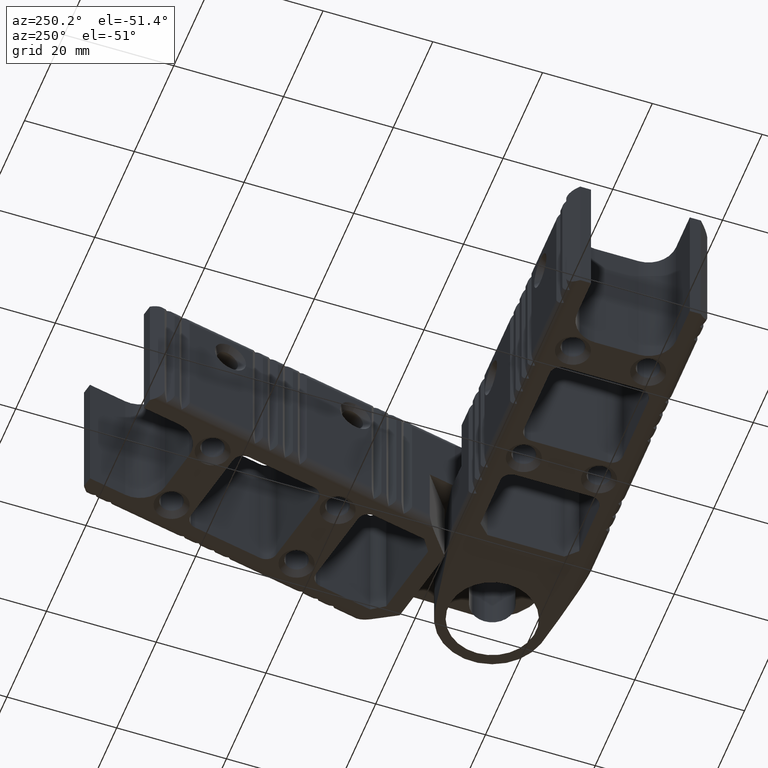
[diagram: clean part render]
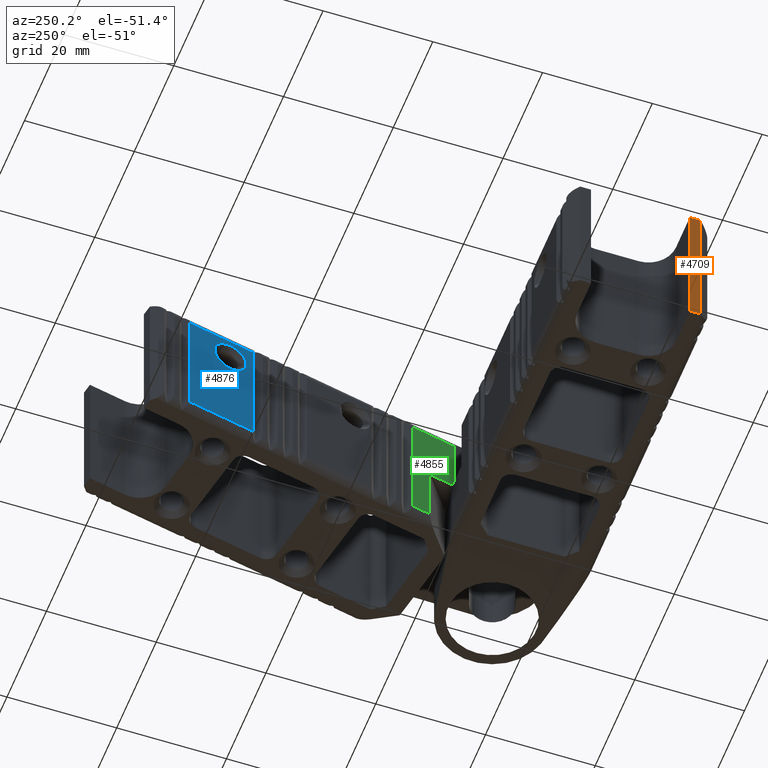
[diagram: same view with three faces highlighted in distinct colors, each labeled with its STEP entity id]
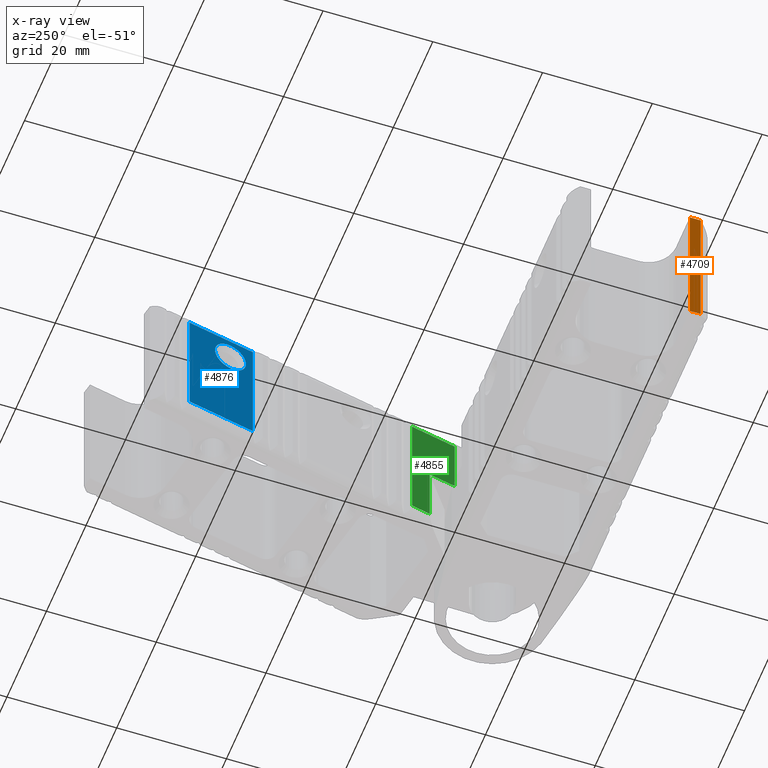
[diagram: x-ray of the same camera — body ghosted, the three highlighted faces saturated]
A machine part, auxiliary view with three faces highlighted in distinct colors.
The next image is the same camera in x-ray (body ghosted, the three faces saturated) — at least one of them is partly hidden behind the body in this view.
Their STEP definitions:

[orange] entity #4709 — the highlighted planar face has unit normal (1, -0, 0).
#33=PLANE('',#5089);
#513=FACE_OUTER_BOUND('',#762,.T.);
#762=EDGE_LOOP('',(#3434,#3435,#3436,#3437,#3438,#3439));
#1021=LINE('',#7532,#1410);
#1045=LINE('',#7602,#1434);
#1062=LINE('',#7650,#1451);
#1064=LINE('',#7656,#1453);
#1410=VECTOR('',#5786,1000.);
#1434=VECTOR('',#5838,1000.);
#1451=VECTOR('',#5873,1000.);
#1453=VECTOR('',#5879,1000.);
#1838=CIRCLE('',#5090,2.);
#1839=CIRCLE('',#5091,2.);
#1994=VERTEX_POINT('',#7529);
#1995=VERTEX_POINT('',#7531);
#2026=VERTEX_POINT('',#7600);
#2027=VERTEX_POINT('',#7601);
#2050=VERTEX_POINT('',#7653);
#2051=VERTEX_POINT('',#7655);
#2527=EDGE_CURVE('',#1995,#1994,#1021,.T.);
#2561=EDGE_CURVE('',#2026,#2027,#1045,.T.);
#2586=EDGE_CURVE('',#2026,#1995,#1062,.T.);
#2588=EDGE_CURVE('',#1994,#2050,#1838,.T.);
#2589=EDGE_CURVE('',#2051,#2050,#1064,.T.);
#2590=EDGE_CURVE('',#2051,#2027,#1839,.T.);
#3434=ORIENTED_EDGE('',*,*,#2527,.T.);
#3435=ORIENTED_EDGE('',*,*,#2588,.T.);
#3436=ORIENTED_EDGE('',*,*,#2589,.F.);
#3437=ORIENTED_EDGE('',*,*,#2590,.T.);
#3438=ORIENTED_EDGE('',*,*,#2561,.F.);
#3439=ORIENTED_EDGE('',*,*,#2586,.T.);
#4709=ADVANCED_FACE('',(#513),#33,.F.);
#5089=AXIS2_PLACEMENT_3D('',#7652,#5875,#5876);
#5090=AXIS2_PLACEMENT_3D('',#7654,#5877,#5878);
#5091=AXIS2_PLACEMENT_3D('',#7657,#5880,#5881);
#5786=DIRECTION('',(5.72031295835295E-15,-1.,-4.02105788955747E-15));
#5838=DIRECTION('',(5.72031295835295E-15,-1.,-4.02105788955747E-15));
#5873=DIRECTION('',(8.9706945392882E-15,-4.02105788955743E-15,-1.));
#5875=DIRECTION('center_axis',(1.,-5.72031295835292E-15,8.97069453928822E-15));
#5876=DIRECTION('ref_axis',(8.97069453928819E-15,-4.02105788955744E-15,
-1.));
#5877=DIRECTION('center_axis',(-1.,5.72031295835299E-15,8.97069453928819E-15));
#5878=DIRECTION('ref_axis',(-8.97069453928821E-15,-3.90312782094771E-15,
-1.));
#5879=DIRECTION('',(8.9706945392882E-15,-4.02105788955743E-15,-1.));
#5880=DIRECTION('center_axis',(-1.,5.72031295835299E-15,8.97069453928819E-15));
#5881=DIRECTION('ref_axis',(-8.97069453928831E-15,-2.168404344971E-14,-1.));
#7529=CARTESIAN_POINT('',(-49.0143302673358,5.84589766430632,0.));
#7531=CARTESIAN_POINT('',(-49.0143302673358,7.69589766430645,0.));
#7532=CARTESIAN_POINT('',(-49.0143302673358,7.69589766430645,0.));
#7600=CARTESIAN_POINT('',(-49.014330267336,7.69589766430623,25.6999999999996));
#7601=CARTESIAN_POINT('',(-49.014330267336,5.8458976643061,25.6999999999996));
#7602=CARTESIAN_POINT('',(-49.014330267336,7.69589766430623,25.6999999999996));
#7650=CARTESIAN_POINT('',(-49.014330267336,7.69589766430623,25.6999999999996));
#7652=CARTESIAN_POINT('Origin',(-49.014330267336,7.69589766430623,25.6999999999996));
#7653=CARTESIAN_POINT('',(-49.0143302673358,5.69589766430667,0.00563293248223573));
#7654=CARTESIAN_POINT('Origin',(-49.0143302673358,5.84589766430632,1.99999999999978));
#7655=CARTESIAN_POINT('',(-49.014330267336,5.69589766430645,25.6943670675183));
#7656=CARTESIAN_POINT('',(-49.014330267336,5.69589766430645,25.6999999999996));
#7657=CARTESIAN_POINT('Origin',(-49.014330267336,5.8458976643061,23.6999999999998));

[blue] entity #4876 — the highlighted planar face has unit normal (0.9813, 0.1925, 0).
#162=PLANE('',#5497);
#221=FACE_BOUND('',#952,.T.);
#680=FACE_OUTER_BOUND('',#951,.T.);
#951=EDGE_LOOP('',(#4388,#4389,#4390,#4391));
#952=EDGE_LOOP('',(#4392,#4393));
#1342=LINE('',#8896,#1731);
#1343=LINE('',#8900,#1732);
#1344=LINE('',#8902,#1733);
#1345=LINE('',#8903,#1734);
#1731=VECTOR('',#6967,1000.);
#1732=VECTOR('',#6972,1000.);
#1733=VECTOR('',#6973,1000.);
#1734=VECTOR('',#6974,1000.);
#1873=CIRCLE('',#5297,3.09999999999998);
#1874=CIRCLE('',#5298,3.09999999999998);
#2198=VERTEX_POINT('',#8135);
#2199=VERTEX_POINT('',#8137);
#2399=VERTEX_POINT('',#8893);
#2400=VERTEX_POINT('',#8895);
#2401=VERTEX_POINT('',#8899);
#2402=VERTEX_POINT('',#8901);
#2829=EDGE_CURVE('',#2199,#2198,#1873,.T.);
#2830=EDGE_CURVE('',#2198,#2199,#1874,.T.);
#3110=EDGE_CURVE('',#2400,#2399,#1342,.T.);
#3112=EDGE_CURVE('',#2399,#2401,#1343,.T.);
#3113=EDGE_CURVE('',#2402,#2401,#1344,.T.);
#3114=EDGE_CURVE('',#2402,#2400,#1345,.T.);
#4388=ORIENTED_EDGE('',*,*,#3110,.T.);
#4389=ORIENTED_EDGE('',*,*,#3112,.T.);
#4390=ORIENTED_EDGE('',*,*,#3113,.F.);
#4391=ORIENTED_EDGE('',*,*,#3114,.T.);
#4392=ORIENTED_EDGE('',*,*,#2829,.T.);
#4393=ORIENTED_EDGE('',*,*,#2830,.T.);
#4876=ADVANCED_FACE('',(#680,#221),#162,.F.);
#5297=AXIS2_PLACEMENT_3D('',#8138,#6419,#6420);
#5298=AXIS2_PLACEMENT_3D('',#8139,#6421,#6422);
#5497=AXIS2_PLACEMENT_3D('',#8898,#6970,#6971);
#6419=DIRECTION('center_axis',(-3.33066907387546E-16,-1.,-6.52223638510904E-17));
#6420=DIRECTION('ref_axis',(2.17234110203879E-32,6.52223638510904E-17,-1.));
#6421=DIRECTION('center_axis',(-3.33066907387546E-16,-1.,-6.52223638510904E-17));
#6422=DIRECTION('ref_axis',(2.17234110203879E-32,6.52223638510904E-17,-1.));
#6967=DIRECTION('',(5.05620425241281E-17,-6.52223638510904E-17,-1.));
#6970=DIRECTION('center_axis',(-3.33066907387546E-16,-1.,6.52223638510903E-17));
#6971=DIRECTION('ref_axis',(5.0562042524128E-17,-6.52223638510904E-17,-1.));
#6972=DIRECTION('',(-1.,-3.33066907387546E-16,5.05620425241281E-17));
#6973=DIRECTION('',(5.05620425241281E-17,-6.52223638510904E-17,-1.));
#6974=DIRECTION('',(1.,3.33066907387546E-16,-5.05620425241281E-17));
#8135=CARTESIAN_POINT('',(-34.0143302673367,29.5458976643072,3.10000000000017));
#8137=CARTESIAN_POINT('',(-34.0143302673367,29.5458976643072,9.30000000000019));
#8138=CARTESIAN_POINT('Origin',(-34.0143302673366,29.5458976643072,6.20000000000021));
#8139=CARTESIAN_POINT('Origin',(-34.0143302673366,29.5458976643072,6.20000000000021));
#8893=CARTESIAN_POINT('',(-29.5372969378551,29.5458976643069,2.00000000000022));
#8895=CARTESIAN_POINT('',(-29.5372969378551,29.5458976643072,23.6999999999998));
#8896=CARTESIAN_POINT('',(-29.5372969378551,29.5458976643072,25.7000000000001));
#8898=CARTESIAN_POINT('Origin',(-42.1643302673364,29.5458976643074,25.7000000000001));
#8899=CARTESIAN_POINT('',(-42.1643302673363,29.5458976643068,2.00000000000022));
#8900=CARTESIAN_POINT('',(-42.1643302673363,29.5458976643068,2.00000000000022));
#8901=CARTESIAN_POINT('',(-42.1643302673364,29.5458976643074,23.6999999999998));
#8902=CARTESIAN_POINT('',(-42.1643302673364,29.5458976643074,25.7000000000001));
#8903=CARTESIAN_POINT('',(-29.5372969378551,29.5458976643072,23.6999999999998));

[green] entity #4855 — the highlighted planar face has unit normal (0.9813, 0.1925, 0).
#141=PLANE('',#5448);
#659=FACE_OUTER_BOUND('',#929,.T.);
#929=EDGE_LOOP('',(#4300,#4301,#4302,#4303,#4304,#4305));
#1254=LINE('',#8587,#1643);
#1306=LINE('',#8771,#1695);
#1307=LINE('',#8773,#1696);
#1308=LINE('',#8775,#1697);
#1309=LINE('',#8776,#1698);
#1310=LINE('',#8777,#1699);
#1643=VECTOR('',#6641,1000.);
#1695=VECTOR('',#6837,1000.);
#1696=VECTOR('',#6838,1000.);
#1697=VECTOR('',#6839,1000.);
#1698=VECTOR('',#6840,1000.);
#1699=VECTOR('',#6841,1000.);
#2297=VERTEX_POINT('',#8585);
#2298=VERTEX_POINT('',#8586);
#2357=VERTEX_POINT('',#8769);
#2358=VERTEX_POINT('',#8770);
#2359=VERTEX_POINT('',#8772);
#2360=VERTEX_POINT('',#8774);
#2954=EDGE_CURVE('',#2297,#2298,#1254,.T.);
#3047=EDGE_CURVE('',#2357,#2358,#1306,.T.);
#3048=EDGE_CURVE('',#2358,#2359,#1307,.T.);
#3049=EDGE_CURVE('',#2360,#2359,#1308,.T.);
#3050=EDGE_CURVE('',#2360,#2297,#1309,.T.);
#3051=EDGE_CURVE('',#2298,#2357,#1310,.T.);
#4300=ORIENTED_EDGE('',*,*,#3047,.T.);
#4301=ORIENTED_EDGE('',*,*,#3048,.T.);
#4302=ORIENTED_EDGE('',*,*,#3049,.F.);
#4303=ORIENTED_EDGE('',*,*,#3050,.T.);
#4304=ORIENTED_EDGE('',*,*,#2954,.T.);
#4305=ORIENTED_EDGE('',*,*,#3051,.T.);
#4855=ADVANCED_FACE('',(#659),#141,.F.);
#5448=AXIS2_PLACEMENT_3D('',#8768,#6835,#6836);
#6641=DIRECTION('',(5.05620425241281E-17,-6.52223638510904E-17,-1.));
#6835=DIRECTION('center_axis',(-3.33066907387546E-16,-1.,6.52223638510903E-17));
#6836=DIRECTION('ref_axis',(5.0562042524128E-17,-6.52223638510904E-17,-1.));
#6837=DIRECTION('',(5.05620425241281E-17,-6.52223638510904E-17,-1.));
#6838=DIRECTION('',(-1.,-3.33066907387546E-16,5.05620425241281E-17));
#6839=DIRECTION('',(5.05620425241281E-17,-6.52223638510904E-17,-1.));
#6840=DIRECTION('',(1.,3.33066907387546E-16,-5.05620425241281E-17));
#6841=DIRECTION('',(1.,3.33066907387546E-16,-5.05620425241281E-17));
#8585=CARTESIAN_POINT('',(5.80803469694846,29.5458976643074,23.6999999999998));
#8586=CARTESIAN_POINT('',(5.80803469694863,29.5458976643073,12.8499999999998));
#8587=CARTESIAN_POINT('',(5.80803469694846,29.5458976643074,25.7000000000001));
#8768=CARTESIAN_POINT('Origin',(2.28564264368525,29.5458976643072,25.7000000000001));
#8769=CARTESIAN_POINT('',(10.8080346969486,29.545897664307,12.8499999999998));
#8770=CARTESIAN_POINT('',(10.8080346969488,29.5458976643068,1.99999999999978));
#8771=CARTESIAN_POINT('',(10.8080346969486,29.545897664307,12.8499999999998));
#8772=CARTESIAN_POINT('',(2.28564264368558,29.5458976643067,1.99999999999978));
#8773=CARTESIAN_POINT('',(6.54683867031719,29.545897664307,1.99999999999978));
#8774=CARTESIAN_POINT('',(2.28564264368525,29.5458976643072,23.6999999999998));
#8775=CARTESIAN_POINT('',(2.28564264368525,29.5458976643072,25.7000000000001));
#8776=CARTESIAN_POINT('',(4.04683867031724,29.5458976643072,23.6999999999998));
#8777=CARTESIAN_POINT('',(5.80803469694863,29.5458976643073,12.8499999999998));